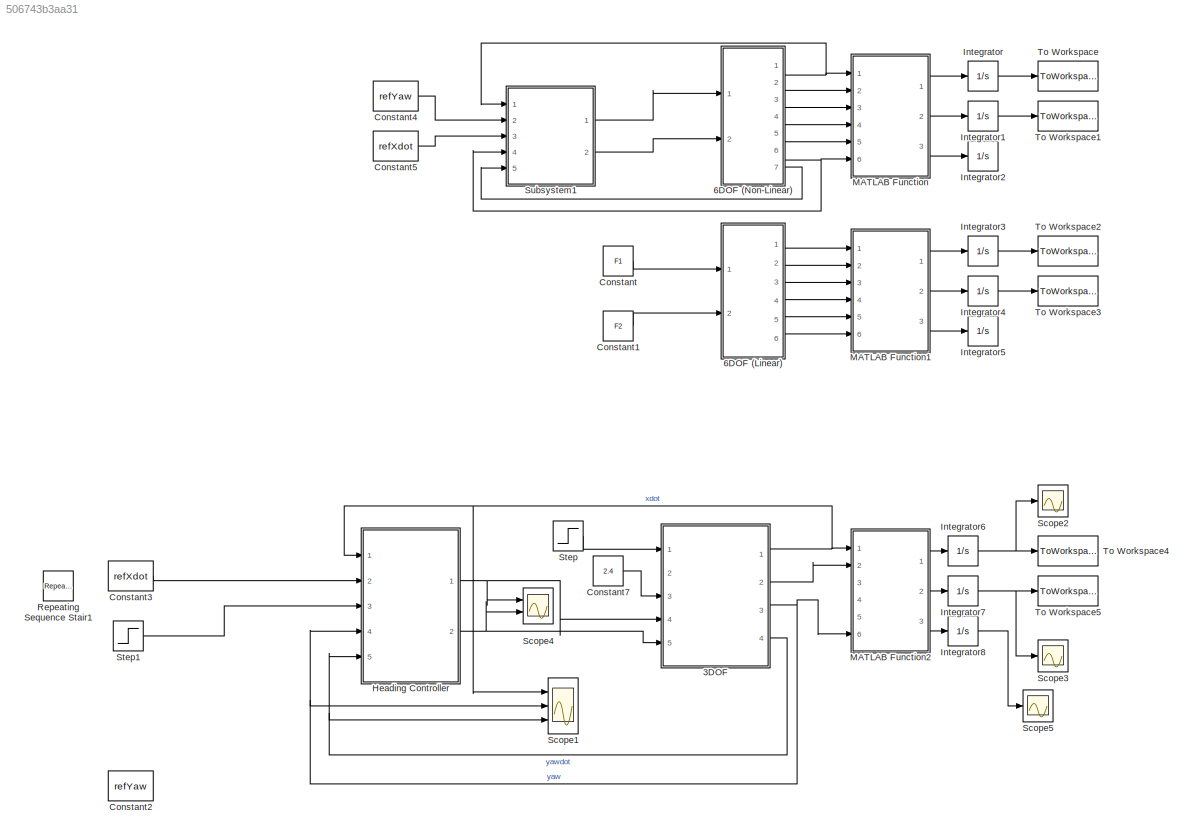
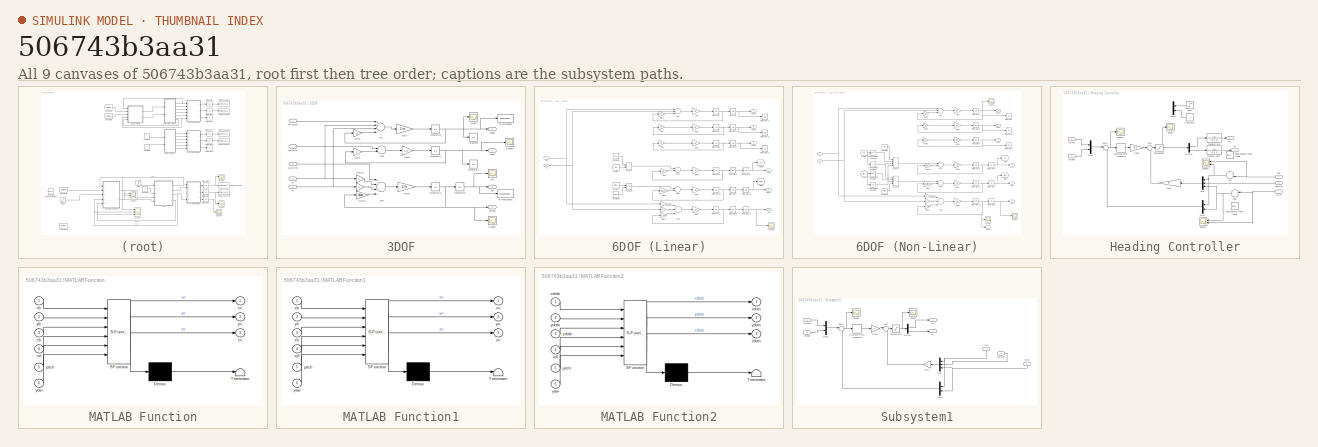
[diagram: thumbnail index - all 9 canvases of the model, root first then tree order]
MODEL slx_506743b3aa31
KIND model
CONFIG AbsTol = auto
CONFIG EnableMultiTasking = off
CONFIG FixedStep = 0.05
CONFIG MaxStep = auto
CONFIG MinStep = auto
CONFIG RelTol = 1e-3
CONFIG SampleTimeConstraint = Unconstrained
CONFIG Solver = FixedStepAuto
CONFIG SolverName = FixedStepAuto
CONFIG StartTime = 0.0
CONFIG StopTime = 50
WORKSPACE source: MAT-file member
WORKSPACE MCOS: class17 (value not decoded)
BLOCK [SubSystem] 3DOF
  Ports = [5, 4]
  RequestExecContextInheritance = off
  Variant = off
BLOCK [Sum] 3DOF/Add
  InputSameDT = off
  Inputs = +++-
  OutDataTypeStr = Inherit: Inherit via internal rule
  Ports = [4, 1]
  SaturateOnIntegerOverflow = off
BLOCK [Sum] 3DOF/Add1
  InputSameDT = off
  Inputs = +-
  OutDataTypeStr = Inherit: Inherit via internal rule
  Ports = [2, 1]
  SaturateOnIntegerOverflow = off
BLOCK [Sum] 3DOF/Add3
  InputSameDT = off
  Inputs = ++--
  OutDataTypeStr = Inherit: Inherit via internal rule
  Ports = [4, 1]
  SaturateOnIntegerOverflow = off
BLOCK [Inport] 3DOF/F1
  IconDisplay = Port number
  Port = 4
BLOCK [Inport] 3DOF/F2
  IconDisplay = Port number
  Port = 5
BLOCK [Inport] 3DOF/Fwind_xb
  IconDisplay = Port number
BLOCK [Inport] 3DOF/Fwind_yb
  IconDisplay = Port number
  Port = 2
BLOCK [Gain] 3DOF/Gain
  Gain = 1/m
  OutDataTypeStr = Inherit: Inherit via internal rule
  ParamDataTypeStr = Inherit: Inherit via internal rule
  SaturateOnIntegerOverflow = off
BLOCK [Gain] 3DOF/Gain1
  Gain = 1/m
  OutDataTypeStr = Inherit: Inherit via internal rule
  ParamDataTypeStr = Inherit: Inherit via internal rule
  SaturateOnIntegerOverflow = off
BLOCK [Gain] 3DOF/Gain11
  Gain = dyaw
  OutDataTypeStr = Inherit: Inherit via internal rule
  ParamDataTypeStr = Inherit: Inherit via internal rule
  SaturateOnIntegerOverflow = off
BLOCK [Gain] 3DOF/Gain12
  Gain = l1
  OutDataTypeStr = Inherit: Inherit via internal rule
  ParamDataTypeStr = Inherit: Inherit via internal rule
  SaturateOnIntegerOverflow = off
BLOCK [Gain] 3DOF/Gain13
  Gain = l2
  OutDataTypeStr = Inherit: Inherit via internal rule
  ParamDataTypeStr = Inherit: Inherit via internal rule
  SaturateOnIntegerOverflow = off
BLOCK [Gain] 3DOF/Gain3
  Gain = dx
  OutDataTypeStr = Inherit: Inherit via internal rule
  ParamDataTypeStr = Inherit: Inherit via internal rule
  SaturateOnIntegerOverflow = off
BLOCK [Gain] 3DOF/Gain4
  Gain = dy
  OutDataTypeStr = Inherit: Inherit via internal rule
  ParamDataTypeStr = Inherit: Inherit via internal rule
  SaturateOnIntegerOverflow = off
BLOCK [Gain] 3DOF/Gain8
  Gain = 1/Iz
  OutDataTypeStr = Inherit: Inherit via internal rule
  ParamDataTypeStr = Inherit: Inherit via internal rule
  SaturateOnIntegerOverflow = off
BLOCK [Integrator] 3DOF/Integrator
  Ports = [1, 1]
BLOCK [Integrator] 3DOF/Integrator1
  Ports = [1, 1]
BLOCK [Integrator] 3DOF/Integrator11
  Ports = [1, 1]
BLOCK [Integrator] 3DOF/Integrator3
  Ports = [1, 1]
BLOCK [Integrator] 3DOF/Integrator4
  Ports = [1, 1]
BLOCK [Integrator] 3DOF/Integrator8
  Ports = [1, 1]
BLOCK [Scope] 3DOF/Scope2
  NumInputPorts = 1
  Ports = [1]
  ScopeSpecificationString = Simulink.scopes.TimeScopeBlockCfg('CurrentConfiguration', extmgr.ConfigurationSet(extmgr.Configuration('Core','General UI',true),extmgr.Configuration('Core','Source UI',true),extmgr.Configuration('Sources','WiredSimulink',true,'DataLoggingVariableName','ScopeData3'),extmgr.Configuration('Visuals','Time Domain',true,'SerializedDisplays',{struct('MinYLimReal','-0.04365','MaxYLimReal','0.39287','YLab...<+1371ch>
BLOCK [Scope] 3DOF/Scope3
  NumInputPorts = 1
  Ports = [1]
  ScopeSpecificationString = Simulink.scopes.TimeScopeBlockCfg('CurrentConfiguration', extmgr.ConfigurationSet(extmgr.Configuration('Core','General UI',true),extmgr.Configuration('Core','Source UI',true),extmgr.Configuration('Sources','WiredSimulink',true,'DataLoggingVariableName','ScopeData1'),extmgr.Configuration('Visuals','Time Domain',true,'SerializedDisplays',{struct('MinYLimReal','-0.04371','MaxYLimReal','0.39336','YLab...<+1370ch>
BLOCK [ToWorkspace] 3DOF/To Workspace
  FixptAsFi = on
  MaxDataPoints = inf
  Ports = [1]
  SampleTime = Ts
  Save2DSignal = 3-D array (concatenate along third dimension)
  SaveFormat = Timeseries
  VariableName = xbdot
BLOCK [ToWorkspace] 3DOF/To Workspace1
  FixptAsFi = on
  MaxDataPoints = inf
  Ports = [1]
  SampleTime = Ts
  Save2DSignal = 3-D array (concatenate along third dimension)
  SaveFormat = Timeseries
  VariableName = yaw
BLOCK [Inport] 3DOF/tau_wind
  IconDisplay = Port number
  Port = 3
BLOCK [Scope] 3DOF/xb dot
  NumInputPorts = 1
  Ports = [1]
  ScopeSpecificationString = Simulink.scopes.TimeScopeBlockCfg('CurrentConfiguration', extmgr.ConfigurationSet(extmgr.Configuration('Core','General UI',true),extmgr.Configuration('Core','Source UI',true),extmgr.Configuration('Sources','WiredSimulink',true,'DataLoggingVariableName','ScopeData1'),extmgr.Configuration('Visuals','Time Domain',true,'SerializedDisplays',{struct('MinYLimReal','-0.1295','MaxYLimReal','1.16552','YLabe...<+1468ch>
BLOCK [Outport] 3DOF/xbdot
  IconDisplay = Port number
BLOCK [Outport] 3DOF/yaw
  IconDisplay = Port number
  Port = 3
BLOCK [Scope] 3DOF/yaw 
  NumInputPorts = 1
  Ports = [1]
  ScopeSpecificationString = Simulink.scopes.TimeScopeBlockCfg('CurrentConfiguration', extmgr.ConfigurationSet(extmgr.Configuration('Core','General UI',true),extmgr.Configuration('Core','Source UI',true),extmgr.Configuration('Sources','WiredSimulink',true,'DataLoggingVariableName','ScopeData2'),extmgr.Configuration('Visuals','Time Domain',true,'SerializedDisplays',{struct('MinYLimReal','-0.125','MaxYLimReal','1.125','YLabelRe...<+1459ch>
BLOCK [Outport] 3DOF/yawdot
  IconDisplay = Port number
  Port = 4
BLOCK [Outport] 3DOF/ybdot
  IconDisplay = Port number
  Port = 2
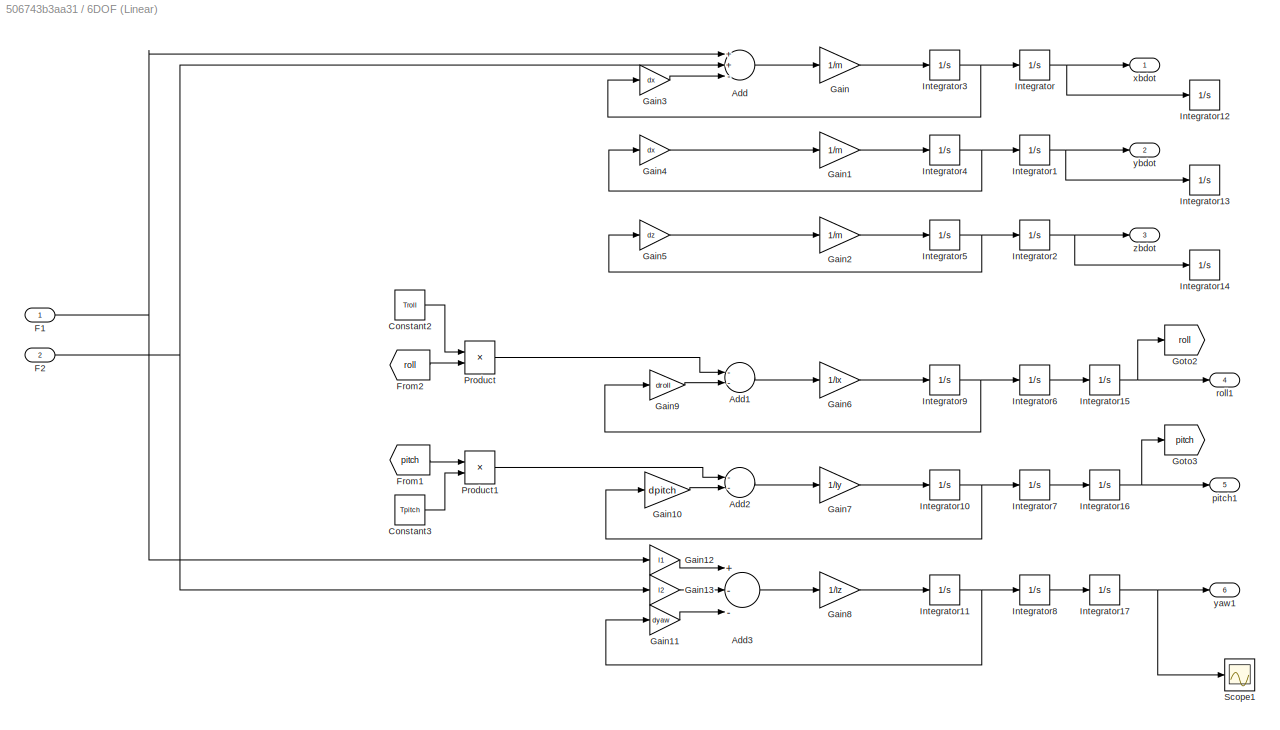
BLOCK [SubSystem] 6DOF (Linear)
  Commented = on
  Ports = [2, 6]
  RequestExecContextInheritance = off
  Variant = off
BLOCK [Sum] 6DOF (Linear)/Add
  InputSameDT = off
  Inputs = ++-
  OutDataTypeStr = Inherit: Inherit via internal rule
  Ports = [3, 1]
  SaturateOnIntegerOverflow = off
BLOCK [Sum] 6DOF (Linear)/Add1
  InputSameDT = off
  Inputs = --
  OutDataTypeStr = Inherit: Inherit via internal rule
  Ports = [2, 1]
  SaturateOnIntegerOverflow = off
BLOCK [Sum] 6DOF (Linear)/Add2
  InputSameDT = off
  Inputs = --
  OutDataTypeStr = Inherit: Inherit via internal rule
  Ports = [2, 1]
  SaturateOnIntegerOverflow = off
BLOCK [Sum] 6DOF (Linear)/Add3
  InputSameDT = off
  Inputs = +--
  OutDataTypeStr = Inherit: Inherit via internal rule
  Ports = [3, 1]
  SaturateOnIntegerOverflow = off
BLOCK [Constant] 6DOF (Linear)/Constant2
  Value = Troll
BLOCK [Constant] 6DOF (Linear)/Constant3
  Value = Tpitch
BLOCK [Inport] 6DOF (Linear)/F1
  IconDisplay = Port number
BLOCK [Inport] 6DOF (Linear)/F2
  IconDisplay = Port number
  Port = 2
BLOCK [From] 6DOF (Linear)/From1
  GotoTag = pitch
BLOCK [From] 6DOF (Linear)/From2
  GotoTag = roll
BLOCK [Gain] 6DOF (Linear)/Gain
  Gain = 1/m
  OutDataTypeStr = Inherit: Inherit via internal rule
  ParamDataTypeStr = Inherit: Inherit via internal rule
  SaturateOnIntegerOverflow = off
BLOCK [Gain] 6DOF (Linear)/Gain1
  Gain = 1/m
  OutDataTypeStr = Inherit: Inherit via internal rule
  ParamDataTypeStr = Inherit: Inherit via internal rule
  SaturateOnIntegerOverflow = off
BLOCK [Gain] 6DOF (Linear)/Gain10
  Gain = dpitch
  OutDataTypeStr = Inherit: Inherit via internal rule
  ParamDataTypeStr = Inherit: Inherit via internal rule
  SaturateOnIntegerOverflow = off
BLOCK [Gain] 6DOF (Linear)/Gain11
  Gain = dyaw
  OutDataTypeStr = Inherit: Inherit via internal rule
  ParamDataTypeStr = Inherit: Inherit via internal rule
  SaturateOnIntegerOverflow = off
BLOCK [Gain] 6DOF (Linear)/Gain12
  Gain = l1
  OutDataTypeStr = Inherit: Inherit via internal rule
  ParamDataTypeStr = Inherit: Inherit via internal rule
  SaturateOnIntegerOverflow = off
BLOCK [Gain] 6DOF (Linear)/Gain13
  Gain = l2
  OutDataTypeStr = Inherit: Inherit via internal rule
  ParamDataTypeStr = Inherit: Inherit via internal rule
  SaturateOnIntegerOverflow = off
BLOCK [Gain] 6DOF (Linear)/Gain2
  Gain = 1/m
  OutDataTypeStr = Inherit: Inherit via internal rule
  ParamDataTypeStr = Inherit: Inherit via internal rule
  SaturateOnIntegerOverflow = off
BLOCK [Gain] 6DOF (Linear)/Gain3
  Gain = dx
  OutDataTypeStr = Inherit: Inherit via internal rule
  ParamDataTypeStr = Inherit: Inherit via internal rule
  SaturateOnIntegerOverflow = off
BLOCK [Gain] 6DOF (Linear)/Gain4
  Gain = dx
  OutDataTypeStr = Inherit: Inherit via internal rule
  ParamDataTypeStr = Inherit: Inherit via internal rule
  SaturateOnIntegerOverflow = off
BLOCK [Gain] 6DOF (Linear)/Gain5
  Gain = dz
  OutDataTypeStr = Inherit: Inherit via internal rule
  ParamDataTypeStr = Inherit: Inherit via internal rule
  SaturateOnIntegerOverflow = off
BLOCK [Gain] 6DOF (Linear)/Gain6
  Gain = 1/Ix
  OutDataTypeStr = Inherit: Inherit via internal rule
  ParamDataTypeStr = Inherit: Inherit via internal rule
  SaturateOnIntegerOverflow = off
BLOCK [Gain] 6DOF (Linear)/Gain7
  Gain = 1/Iy
  OutDataTypeStr = Inherit: Inherit via internal rule
  ParamDataTypeStr = Inherit: Inherit via internal rule
  SaturateOnIntegerOverflow = off
BLOCK [Gain] 6DOF (Linear)/Gain8
  Gain = 1/Iz
  OutDataTypeStr = Inherit: Inherit via internal rule
  ParamDataTypeStr = Inherit: Inherit via internal rule
  SaturateOnIntegerOverflow = off
BLOCK [Gain] 6DOF (Linear)/Gain9
  Gain = droll
  OutDataTypeStr = Inherit: Inherit via internal rule
  ParamDataTypeStr = Inherit: Inherit via internal rule
  SaturateOnIntegerOverflow = off
BLOCK [Goto] 6DOF (Linear)/Goto2
  GotoTag = roll
BLOCK [Goto] 6DOF (Linear)/Goto3
  GotoTag = pitch
BLOCK [Integrator] 6DOF (Linear)/Integrator
  Ports = [1, 1]
BLOCK [Integrator] 6DOF (Linear)/Integrator1
  Ports = [1, 1]
BLOCK [Integrator] 6DOF (Linear)/Integrator10
  Ports = [1, 1]
BLOCK [Integrator] 6DOF (Linear)/Integrator11
  Ports = [1, 1]
BLOCK [Integrator] 6DOF (Linear)/Integrator12
  Ports = [1, 1]
BLOCK [Integrator] 6DOF (Linear)/Integrator13
  Ports = [1, 1]
BLOCK [Integrator] 6DOF (Linear)/Integrator14
  Ports = [1, 1]
BLOCK [Integrator] 6DOF (Linear)/Integrator15
  Ports = [1, 1]
BLOCK [Integrator] 6DOF (Linear)/Integrator16
  Ports = [1, 1]
BLOCK [Integrator] 6DOF (Linear)/Integrator17
  Ports = [1, 1]
BLOCK [Integrator] 6DOF (Linear)/Integrator2
  Ports = [1, 1]
BLOCK [Integrator] 6DOF (Linear)/Integrator3
  Ports = [1, 1]
BLOCK [Integrator] 6DOF (Linear)/Integrator4
  Ports = [1, 1]
BLOCK [Integrator] 6DOF (Linear)/Integrator5
  Ports = [1, 1]
BLOCK [Integrator] 6DOF (Linear)/Integrator6
  Ports = [1, 1]
BLOCK [Integrator] 6DOF (Linear)/Integrator7
  Ports = [1, 1]
BLOCK [Integrator] 6DOF (Linear)/Integrator8
  Ports = [1, 1]
BLOCK [Integrator] 6DOF (Linear)/Integrator9
  Ports = [1, 1]
BLOCK [Product] 6DOF (Linear)/Product
  InputSameDT = off
  OutDataTypeStr = Inherit: Inherit via internal rule
  Ports = [2, 1]
  RndMeth = Floor
  SaturateOnIntegerOverflow = off
BLOCK [Product] 6DOF (Linear)/Product1
  InputSameDT = off
  OutDataTypeStr = Inherit: Inherit via internal rule
  Ports = [2, 1]
  RndMeth = Floor
  SaturateOnIntegerOverflow = off
BLOCK [Scope] 6DOF (Linear)/Scope1
  NumInputPorts = 1
  Ports = [1]
  ScopeSpecificationString = C++SS(StrPVP('SaveName','ScopeData2'),StrPVP('LimitDataPoints','on'),StrPVP('DataFormat','Array'),StrPVP('Decimation','1'),StrPVP('BlockParamSampleInput','off'))
BLOCK [Outport] 6DOF (Linear)/pitch1
  IconDisplay = Port number
  Port = 5
BLOCK [Outport] 6DOF (Linear)/roll1
  IconDisplay = Port number
  Port = 4
BLOCK [Outport] 6DOF (Linear)/xbdot
  IconDisplay = Port number
BLOCK [Outport] 6DOF (Linear)/yaw1
  IconDisplay = Port number
  Port = 6
BLOCK [Outport] 6DOF (Linear)/ybdot
  IconDisplay = Port number
  Port = 2
BLOCK [Outport] 6DOF (Linear)/zbdot
  IconDisplay = Port number
  Port = 3
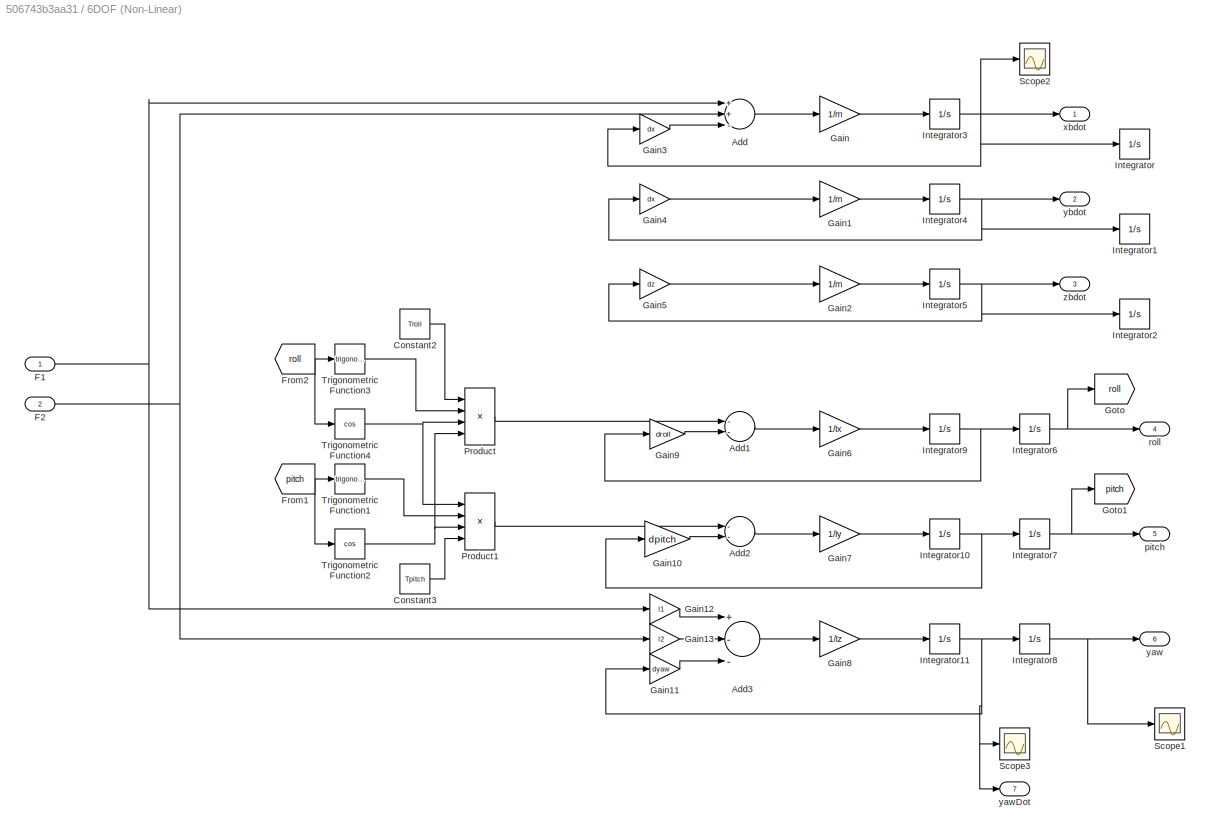
BLOCK [SubSystem] 6DOF (Non-Linear)
  Commented = on
  Ports = [2, 7]
  RequestExecContextInheritance = off
  Variant = off
BLOCK [Sum] 6DOF (Non-Linear)/Add
  InputSameDT = off
  Inputs = ++-
  OutDataTypeStr = Inherit: Inherit via internal rule
  Ports = [3, 1]
  SaturateOnIntegerOverflow = off
BLOCK [Sum] 6DOF (Non-Linear)/Add1
  InputSameDT = off
  Inputs = --
  OutDataTypeStr = Inherit: Inherit via internal rule
  Ports = [2, 1]
  SaturateOnIntegerOverflow = off
BLOCK [Sum] 6DOF (Non-Linear)/Add2
  InputSameDT = off
  Inputs = --
  OutDataTypeStr = Inherit: Inherit via internal rule
  Ports = [2, 1]
  SaturateOnIntegerOverflow = off
BLOCK [Sum] 6DOF (Non-Linear)/Add3
  InputSameDT = off
  Inputs = +--
  OutDataTypeStr = Inherit: Inherit via internal rule
  Ports = [3, 1]
  SaturateOnIntegerOverflow = off
BLOCK [Constant] 6DOF (Non-Linear)/Constant2
  Value = Troll
BLOCK [Constant] 6DOF (Non-Linear)/Constant3
  Value = Tpitch
BLOCK [Inport] 6DOF (Non-Linear)/F1
  IconDisplay = Port number
BLOCK [Inport] 6DOF (Non-Linear)/F2
  IconDisplay = Port number
  Port = 2
BLOCK [From] 6DOF (Non-Linear)/From1
  GotoTag = pitch
BLOCK [From] 6DOF (Non-Linear)/From2
  GotoTag = roll
BLOCK [Gain] 6DOF (Non-Linear)/Gain
  Gain = 1/m
  OutDataTypeStr = Inherit: Inherit via internal rule
  ParamDataTypeStr = Inherit: Inherit via internal rule
  SaturateOnIntegerOverflow = off
BLOCK [Gain] 6DOF (Non-Linear)/Gain1
  Gain = 1/m
  OutDataTypeStr = Inherit: Inherit via internal rule
  ParamDataTypeStr = Inherit: Inherit via internal rule
  SaturateOnIntegerOverflow = off
BLOCK [Gain] 6DOF (Non-Linear)/Gain10
  Gain = dpitch
  OutDataTypeStr = Inherit: Inherit via internal rule
  ParamDataTypeStr = Inherit: Inherit via internal rule
  SaturateOnIntegerOverflow = off
BLOCK [Gain] 6DOF (Non-Linear)/Gain11
  Gain = dyaw
  OutDataTypeStr = Inherit: Inherit via internal rule
  ParamDataTypeStr = Inherit: Inherit via internal rule
  SaturateOnIntegerOverflow = off
BLOCK [Gain] 6DOF (Non-Linear)/Gain12
  Gain = l1
  OutDataTypeStr = Inherit: Inherit via internal rule
  ParamDataTypeStr = Inherit: Inherit via internal rule
  SaturateOnIntegerOverflow = off
BLOCK [Gain] 6DOF (Non-Linear)/Gain13
  Gain = l2
  OutDataTypeStr = Inherit: Inherit via internal rule
  ParamDataTypeStr = Inherit: Inherit via internal rule
  SaturateOnIntegerOverflow = off
BLOCK [Gain] 6DOF (Non-Linear)/Gain2
  Gain = 1/m
  OutDataTypeStr = Inherit: Inherit via internal rule
  ParamDataTypeStr = Inherit: Inherit via internal rule
  SaturateOnIntegerOverflow = off
BLOCK [Gain] 6DOF (Non-Linear)/Gain3
  Gain = dx
  OutDataTypeStr = Inherit: Inherit via internal rule
  ParamDataTypeStr = Inherit: Inherit via internal rule
  SaturateOnIntegerOverflow = off
BLOCK [Gain] 6DOF (Non-Linear)/Gain4
  Gain = dx
  OutDataTypeStr = Inherit: Inherit via internal rule
  ParamDataTypeStr = Inherit: Inherit via internal rule
  SaturateOnIntegerOverflow = off
BLOCK [Gain] 6DOF (Non-Linear)/Gain5
  Gain = dz
  OutDataTypeStr = Inherit: Inherit via internal rule
  ParamDataTypeStr = Inherit: Inherit via internal rule
  SaturateOnIntegerOverflow = off
BLOCK [Gain] 6DOF (Non-Linear)/Gain6
  Gain = 1/Ix
  OutDataTypeStr = Inherit: Inherit via internal rule
  ParamDataTypeStr = Inherit: Inherit via internal rule
  SaturateOnIntegerOverflow = off
BLOCK [Gain] 6DOF (Non-Linear)/Gain7
  Gain = 1/Iy
  OutDataTypeStr = Inherit: Inherit via internal rule
  ParamDataTypeStr = Inherit: Inherit via internal rule
  SaturateOnIntegerOverflow = off
BLOCK [Gain] 6DOF (Non-Linear)/Gain8
  Gain = 1/Iz
  OutDataTypeStr = Inherit: Inherit via internal rule
  ParamDataTypeStr = Inherit: Inherit via internal rule
  SaturateOnIntegerOverflow = off
BLOCK [Gain] 6DOF (Non-Linear)/Gain9
  Gain = droll
  OutDataTypeStr = Inherit: Inherit via internal rule
  ParamDataTypeStr = Inherit: Inherit via internal rule
  SaturateOnIntegerOverflow = off
BLOCK [Goto] 6DOF (Non-Linear)/Goto
  GotoTag = roll
BLOCK [Goto] 6DOF (Non-Linear)/Goto1
  GotoTag = pitch
BLOCK [Integrator] 6DOF (Non-Linear)/Integrator
  Ports = [1, 1]
BLOCK [Integrator] 6DOF (Non-Linear)/Integrator1
  Ports = [1, 1]
BLOCK [Integrator] 6DOF (Non-Linear)/Integrator10
  Ports = [1, 1]
BLOCK [Integrator] 6DOF (Non-Linear)/Integrator11
  Ports = [1, 1]
BLOCK [Integrator] 6DOF (Non-Linear)/Integrator2
  Ports = [1, 1]
BLOCK [Integrator] 6DOF (Non-Linear)/Integrator3
  Ports = [1, 1]
BLOCK [Integrator] 6DOF (Non-Linear)/Integrator4
  Ports = [1, 1]
BLOCK [Integrator] 6DOF (Non-Linear)/Integrator5
  Ports = [1, 1]
BLOCK [Integrator] 6DOF (Non-Linear)/Integrator6
  Ports = [1, 1]
BLOCK [Integrator] 6DOF (Non-Linear)/Integrator7
  Ports = [1, 1]
BLOCK [Integrator] 6DOF (Non-Linear)/Integrator8
  Ports = [1, 1]
BLOCK [Integrator] 6DOF (Non-Linear)/Integrator9
  Ports = [1, 1]
BLOCK [Product] 6DOF (Non-Linear)/Product
  InputSameDT = off
  Inputs = 4
  OutDataTypeStr = Inherit: Inherit via internal rule
  Ports = [4, 1]
  RndMeth = Floor
  SaturateOnIntegerOverflow = off
BLOCK [Product] 6DOF (Non-Linear)/Product1
  InputSameDT = off
  Inputs = 4
  OutDataTypeStr = Inherit: Inherit via internal rule
  Ports = [4, 1]
  RndMeth = Floor
  SaturateOnIntegerOverflow = off
BLOCK [Scope] 6DOF (Non-Linear)/Scope1
  NumInputPorts = 1
  Ports = [1]
  ScopeSpecificationString = Simulink.scopes.TimeScopeBlockCfg('CurrentConfiguration', extmgr.ConfigurationSet(extmgr.Configuration('Core','General UI',true),extmgr.Configuration('Core','Source UI',true),extmgr.Configuration('Sources','WiredSimulink',true,'DataLoggingVariableName','ScopeData3'),extmgr.Configuration('Visuals','Time Domain',true,'SerializedDisplays',{struct('MinYLimReal','-0.13055','MaxYLimReal','1.17499','YLab...<+1370ch>
BLOCK [Scope] 6DOF (Non-Linear)/Scope2
  NumInputPorts = 1
  Ports = [1]
  ScopeSpecificationString = Simulink.scopes.TimeScopeBlockCfg('CurrentConfiguration', extmgr.ConfigurationSet(extmgr.Configuration('Core','General UI',true),extmgr.Configuration('Core','Source UI',true),extmgr.Configuration('Sources','WiredSimulink',true),extmgr.Configuration('Visuals','Time Domain',true,'SerializedDisplays',{struct('MinYLimReal','-0.125','MaxYLimReal','1.12496','YLabelReal','','MinYLimMag','0.00000','MaxYLi...<+1356ch>
BLOCK [Scope] 6DOF (Non-Linear)/Scope3
  NumInputPorts = 1
  Ports = [1]
  ScopeSpecificationString = Simulink.scopes.TimeScopeBlockCfg('CurrentConfiguration', extmgr.ConfigurationSet(extmgr.Configuration('Core','General UI',true),extmgr.Configuration('Core','Source UI',true),extmgr.Configuration('Sources','WiredSimulink',true,'DataLoggingVariableName','ScopeData1'),extmgr.Configuration('Visuals','Time Domain',true,'SerializedDisplays',{struct('MinYLimReal','-0.04063','MaxYLimReal','0.36567','YLab...<+1400ch>
BLOCK [Trigonometry] 6DOF (Non-Linear)/Trigonometric Function1
  Ports = [1, 1]
BLOCK [Trigonometry] 6DOF (Non-Linear)/Trigonometric Function2
  Operator = cos
  Ports = [1, 1]
BLOCK [Trigonometry] 6DOF (Non-Linear)/Trigonometric Function3
  Ports = [1, 1]
BLOCK [Trigonometry] 6DOF (Non-Linear)/Trigonometric Function4
  Operator = cos
  Ports = [1, 1]
BLOCK [Outport] 6DOF (Non-Linear)/pitch
  IconDisplay = Port number
  Port = 5
BLOCK [Outport] 6DOF (Non-Linear)/roll
  IconDisplay = Port number
  Port = 4
BLOCK [Outport] 6DOF (Non-Linear)/xbdot
  IconDisplay = Port number
BLOCK [Outport] 6DOF (Non-Linear)/yaw
  IconDisplay = Port number
  Port = 6
BLOCK [Outport] 6DOF (Non-Linear)/yawDot
  IconDisplay = Port number
  Port = 7
BLOCK [Outport] 6DOF (Non-Linear)/ybdot
  IconDisplay = Port number
  Port = 2
BLOCK [Outport] 6DOF (Non-Linear)/zbdot
  IconDisplay = Port number
  Port = 3
BLOCK [Constant] Constant
  Commented = on
  Value = F1
BLOCK [Constant] Constant1
  Commented = on
  Value = F2
BLOCK [Constant] Constant2
  Value = refYaw
BLOCK [Constant] Constant3
  Value = refXdot
BLOCK [Constant] Constant4
  Commented = on
  Value = refYaw
BLOCK [Constant] Constant5
  Commented = on
  Value = refXdot
BLOCK [Constant] Constant7
  Value = 2.4
BLOCK [SubSystem] Heading Controller
  Ports = [5, 2]
  RequestExecContextInheritance = off
  Variant = off
BLOCK [Sum] Heading Controller/Add
  InputSameDT = off
  OutDataTypeStr = Inherit: Inherit via internal rule
  Ports = [2, 1]
  SaturateOnIntegerOverflow = off
BLOCK [Sum] Heading Controller/Add1
  InputSameDT = off
  OutDataTypeStr = Inherit: Inherit via internal rule
  Ports = [2, 1]
  SaturateOnIntegerOverflow = off
BLOCK [Reference] Heading Controller/Band-Limited White Noise  REF=simulink/Sources/Band-Limited
White Noise
  Ports = [0, 1]
  SourceBlock = simulink/Sources/Band-Limited\nWhite Noise
  SourceType = Band-Limited White Noise.
BLOCK [Reference] Heading Controller/Band-Limited White Noise1  REF=simulink/Sources/Band-Limited
White Noise
  Ports = [0, 1]
  SourceBlock = simulink/Sources/Band-Limited\nWhite Noise
  SourceType = Band-Limited White Noise.
BLOCK [Constant] Heading Controller/Constant7
BLOCK [Demux] Heading Controller/Demux
  DisplayOption = bar
  Outputs = 2
  Ports = [1, 2]
BLOCK [DiscreteIntegrator] Heading Controller/Discrete-Time Integrator
  ICPrevOutput = DiscIntNeverNeededParam
  ICPrevScaledInput = DiscIntNeverNeededParam
  InitialConditionSetting = State (most efficient)
  Ports = [1, 1]
  SampleTime = -1
BLOCK [Outport] Heading Controller/F1
  IconDisplay = Port number
BLOCK [Outport] Heading Controller/F2
  IconDisplay = Port number
  Port = 2
BLOCK [Gain] Heading Controller/Gain
  Gain = F
  Multiplication = Matrix(K*u)
  OutDataTypeStr = Inherit: Inherit via internal rule
  ParamDataTypeStr = Inherit: Inherit via internal rule
  SaturateOnIntegerOverflow = off
BLOCK [Gain] Heading Controller/Gain1
  Gain = FI
  Multiplication = Matrix(K*u)
  OutDataTypeStr = Inherit: Inherit via internal rule
  ParamDataTypeStr = Inherit: Inherit via internal rule
  SaturateOnIntegerOverflow = off
BLOCK [Mux] Heading Controller/Mux
  DisplayOption = bar
  Inputs = 3
  Ports = [3, 1]
BLOCK [Mux] Heading Controller/Mux1
  DisplayOption = bar
  Inputs = 2
  Ports = [2, 1]
BLOCK [Mux] Heading Controller/Mux2
  DisplayOption = bar
  Inputs = 2
  Ports = [2, 1]
BLOCK [Mux] Heading Controller/Mux3
  DisplayOption = bar
  Inputs = 2
  Ports = [2, 1]
BLOCK [Saturate] Heading Controller/Saturation1
  InputPortMap = u0
  LowerLimit = -25
  Ports = [1, 1]
  UpperLimit = 50
BLOCK [Scope] Heading Controller/Scope
  NumInputPorts = 1
  Ports = [1]
  ScopeSpecificationString = Simulink.scopes.TimeScopeBlockCfg('CurrentConfiguration', extmgr.ConfigurationSet(extmgr.Configuration('Core','General UI',true),extmgr.Configuration('Core','Source UI',true),extmgr.Configuration('Sources','WiredSimulink',true,'DataLoggingVariableName','ScopeData4'),extmgr.Configuration('Visuals','Time Domain',true,'SerializedDisplays',{struct('MinYLimReal','-34.375','MaxYLimReal','59.375','YLabel...<+1453ch>
BLOCK [Scope] Heading Controller/Scope1
  NumInputPorts = 1
  Ports = [1]
  ScopeSpecificationString = Simulink.scopes.TimeScopeBlockCfg('CurrentConfiguration', extmgr.ConfigurationSet(extmgr.Configuration('Core','General UI',true),extmgr.Configuration('Core','Source UI',true),extmgr.Configuration('Sources','WiredSimulink',true,'DataLoggingVariableName','ScopeData5'),extmgr.Configuration('Visuals','Time Domain',true,'SerializedDisplays',{struct('MinYLimReal','-0.1309','MaxYLimReal','1.1781','YLabel...<+1441ch>
BLOCK [Scope] Heading Controller/Scope2
  NumInputPorts = 2
  Ports = [2]
  ScopeSpecificationString = Simulink.scopes.TimeScopeBlockCfg('CurrentConfiguration', extmgr.ConfigurationSet(extmgr.Configuration('Core','General UI',true),extmgr.Configuration('Core','Source UI',true),extmgr.Configuration('Sources','WiredSimulink',true,'DataLoggingVariableName','ScopeData1'),extmgr.Configuration('Visuals','Time Domain',true,'SerializedDisplays',{struct('MinYLimReal','-0.1274','MaxYLimReal','1.14661','YLabe...<+1395ch>
BLOCK [Scope] Heading Controller/Scope3
  NumInputPorts = 2
  Ports = [2]
  ScopeSpecificationString = Simulink.scopes.TimeScopeBlockCfg('CurrentConfiguration', extmgr.ConfigurationSet(extmgr.Configuration('Core','General UI',true),extmgr.Configuration('Core','Source UI',true),extmgr.Configuration('Sources','WiredSimulink',true,'DataLoggingVariableName','ScopeData2'),extmgr.Configuration('Visuals','Time Domain',true,'SerializedDisplays',{struct('MinYLimReal','-0.12507','MaxYLimReal','1.12507','YLab...<+1439ch>
BLOCK [Step] Heading Controller/Step
  After = 50
  SampleTime = 0
  Time = 3
BLOCK [Sum] Heading Controller/Sum
  IconShape = round
  InputSameDT = off
  Inputs = ---
  OutDataTypeStr = Inherit: Inherit via internal rule
  Ports = [3, 1]
  SaturateOnIntegerOverflow = off
BLOCK [Sum] Heading Controller/Sum1
  IconShape = round
  InputSameDT = off
  Inputs = |+-
  OutDataTypeStr = Inherit: Inherit via internal rule
  Ports = [2, 1]
  SaturateOnIntegerOverflow = off
BLOCK [TransferFcn] Heading Controller/Transfer Fcn
  Denominator = [0.1 1]
BLOCK [TransferFcn] Heading Controller/Transfer Fcn1
  Denominator = [0.1 1]
BLOCK [Inport] Heading Controller/refXdot
  IconDisplay = Port number
  Port = 2
  PortDimensions = 1
BLOCK [Inport] Heading Controller/refYaw
  IconDisplay = Port number
  Port = 3
  PortDimensions = 1
BLOCK [Inport] Heading Controller/xDot
  IconDisplay = Port number
BLOCK [Inport] Heading Controller/yaw
  IconDisplay = Port number
  Port = 4
BLOCK [Inport] Heading Controller/yawDot
  IconDisplay = Port number
  Port = 5
BLOCK [Integrator] Integrator
  Commented = on
  Ports = [1, 1]
BLOCK [Integrator] Integrator1
  Commented = on
  Ports = [1, 1]
BLOCK [Integrator] Integrator2
  Commented = on
  Ports = [1, 1]
BLOCK [Integrator] Integrator3
  Commented = on
  Ports = [1, 1]
BLOCK [Integrator] Integrator4
  Commented = on
  Ports = [1, 1]
BLOCK [Integrator] Integrator5
  Commented = on
  Ports = [1, 1]
BLOCK [Integrator] Integrator6
  Ports = [1, 1]
BLOCK [Integrator] Integrator7
  Ports = [1, 1]
BLOCK [Integrator] Integrator8
  Ports = [1, 1]
BLOCK [SubSystem] MATLAB Function
  Commented = on
  ErrorFcn = Stateflow.Translate.translate
  PermitHierarchicalResolution = ExplicitOnly
  Ports = [6, 3]
  RequestExecContextInheritance = off
  SFBlockType = MATLAB Function
  TreatAsAtomicUnit = on
  Variant = off
BLOCK [Demux] MATLAB Function/ Demux 
  Outputs = 1
  Ports = [1, 1]
BLOCK [S-Function] MATLAB Function/ SFunction 
  EnableBusSupport = on
  FunctionName = sf_sfun
  PortCounts = [6 4]
  Ports = [6, 4]
  SFcnIsStateOwnerBlock = off
  SFunctionDeploymentMode = off
  Tag = Stateflow S-Function InnerController 2
BLOCK [Terminator] MATLAB Function/ Terminator 
BLOCK [Inport] MATLAB Function/pitch
  IconDisplay = Port number
  Port = 5
BLOCK [Inport] MATLAB Function/roll
  IconDisplay = Port number
  Port = 4
BLOCK [Inport] MATLAB Function/xb
  IconDisplay = Port number
BLOCK [Outport] MATLAB Function/xn
  IconDisplay = Port number
BLOCK [Inport] MATLAB Function/yaw
  IconDisplay = Port number
  Port = 6
BLOCK [Inport] MATLAB Function/yb
  IconDisplay = Port number
  Port = 2
BLOCK [Outport] MATLAB Function/yn
  IconDisplay = Port number
  Port = 2
BLOCK [Inport] MATLAB Function/zb
  IconDisplay = Port number
  Port = 3
BLOCK [Outport] MATLAB Function/zn
  IconDisplay = Port number
  Port = 3
BLOCK [SubSystem] MATLAB Function1
  Commented = on
  ErrorFcn = Stateflow.Translate.translate
  PermitHierarchicalResolution = ExplicitOnly
  Ports = [6, 3]
  RequestExecContextInheritance = off
  SFBlockType = MATLAB Function
  TreatAsAtomicUnit = on
  Variant = off
BLOCK [Demux] MATLAB Function1/ Demux 
  Outputs = 1
  Ports = [1, 1]
BLOCK [S-Function] MATLAB Function1/ SFunction 
  EnableBusSupport = on
  FunctionName = sf_sfun
  PortCounts = [6 4]
  Ports = [6, 4]
  SFcnIsStateOwnerBlock = off
  SFunctionDeploymentMode = off
  Tag = Stateflow S-Function InnerController 1
BLOCK [Terminator] MATLAB Function1/ Terminator 
BLOCK [Inport] MATLAB Function1/pitch
  IconDisplay = Port number
  Port = 5
BLOCK [Inport] MATLAB Function1/roll
  IconDisplay = Port number
  Port = 4
BLOCK [Inport] MATLAB Function1/xb
  IconDisplay = Port number
BLOCK [Outport] MATLAB Function1/xn
  IconDisplay = Port number
BLOCK [Inport] MATLAB Function1/yaw
  IconDisplay = Port number
  Port = 6
BLOCK [Inport] MATLAB Function1/yb
  IconDisplay = Port number
  Port = 2
BLOCK [Outport] MATLAB Function1/yn
  IconDisplay = Port number
  Port = 2
BLOCK [Inport] MATLAB Function1/zb
  IconDisplay = Port number
  Port = 3
BLOCK [Outport] MATLAB Function1/zn
  IconDisplay = Port number
  Port = 3
BLOCK [SubSystem] MATLAB Function2
  ErrorFcn = Stateflow.Translate.translate
  PermitHierarchicalResolution = ExplicitOnly
  Ports = [6, 3]
  RequestExecContextInheritance = off
  SFBlockType = MATLAB Function
  TreatAsAtomicUnit = on
  Variant = off
BLOCK [Demux] MATLAB Function2/ Demux 
  Outputs = 1
  Ports = [1, 1]
BLOCK [S-Function] MATLAB Function2/ SFunction 
  EnableBusSupport = on
  FunctionName = sf_sfun
  PortCounts = [6 4]
  Ports = [6, 4]
  SFcnIsStateOwnerBlock = off
  SFunctionDeploymentMode = off
  Tag = Stateflow S-Function InnerController 3
BLOCK [Terminator] MATLAB Function2/ Terminator 
BLOCK [Inport] MATLAB Function2/pitch
  IconDisplay = Port number
  Port = 5
BLOCK [Inport] MATLAB Function2/roll
  IconDisplay = Port number
  Port = 4
BLOCK [Inport] MATLAB Function2/xdotb
  IconDisplay = Port number
BLOCK [Outport] MATLAB Function2/xdotn
  IconDisplay = Port number
BLOCK [Inport] MATLAB Function2/yaw
  IconDisplay = Port number
  Port = 6
BLOCK [Inport] MATLAB Function2/ydotb
  IconDisplay = Port number
  Port = 2
BLOCK [Outport] MATLAB Function2/ydotn
  IconDisplay = Port number
  Port = 2
BLOCK [Inport] MATLAB Function2/zdotb
  IconDisplay = Port number
  Port = 3
BLOCK [Outport] MATLAB Function2/zdotn
  IconDisplay = Port number
  Port = 3
BLOCK [Reference] Repeating Sequence Stair1  REF=simulink/Sources/Repeating
Sequence
Stair
  Ports = [0, 1]
  SourceBlock = simulink/Sources/Repeating\nSequence\nStair
  SourceType = Repeating Sequence Stair
BLOCK [Scope] Scope1
  NumInputPorts = 3
  Ports = [3]
  ScopeSpecificationString = Simulink.scopes.TimeScopeBlockCfg('CurrentConfiguration', extmgr.ConfigurationSet(extmgr.Configuration('Core','General UI',true),extmgr.Configuration('Core','Source UI',true),extmgr.Configuration('Sources','WiredSimulink',true,'DataLoggingVariableName','ScopeData1'),extmgr.Configuration('Visuals','Time Domain',true,'SerializedDisplays',{struct('MinYLimReal','-0.13061','MaxYLimReal','1.1755','YLabe...<+1447ch>
BLOCK [Scope] Scope2
  NumInputPorts = 1
  Ports = [1]
  ScopeSpecificationString = Simulink.scopes.TimeScopeBlockCfg('CurrentConfiguration', extmgr.ConfigurationSet(extmgr.Configuration('Core','General UI',true),extmgr.Configuration('Core','Source UI',true),extmgr.Configuration('Sources','WiredSimulink',true,'DataLoggingVariableName','ScopeData6'),extmgr.Configuration('Visuals','Time Domain',true,'SerializedDisplays',{struct('MinYLimReal','-1.38458','MaxYLimReal','12.46118','YLa...<+1472ch>
BLOCK [Scope] Scope3
  NumInputPorts = 1
  Ports = [1]
  ScopeSpecificationString = Simulink.scopes.TimeScopeBlockCfg('CurrentConfiguration', extmgr.ConfigurationSet(extmgr.Configuration('Core','General UI',true),extmgr.Configuration('Core','Source UI',true),extmgr.Configuration('Sources','WiredSimulink',true,'DataLoggingVariableName','ScopeData7'),extmgr.Configuration('Visuals','Time Domain',true,'SerializedDisplays',{struct('MinYLimReal','-18.44979','MaxYLimReal','166.04811','Y...<+1479ch>
BLOCK [Scope] Scope4
  NumInputPorts = 2
  Ports = [2]
  ScopeSpecificationString = Simulink.scopes.TimeScopeBlockCfg('CurrentConfiguration', extmgr.ConfigurationSet(extmgr.Configuration('Core','General UI',true),extmgr.Configuration('Core','Source UI',true),extmgr.Configuration('Sources','WiredSimulink',true,'DataLoggingVariableName','ScopeData2'),extmgr.Configuration('Visuals','Time Domain',true,'SerializedDisplays',{struct('MinYLimReal','-34.375','MaxYLimReal','59.375','YLabel...<+1467ch>
BLOCK [Scope] Scope5
  NumInputPorts = 1
  Ports = [1]
  ScopeSpecificationString = C++SS(StrPVP('SaveName','ScopeData1'),StrPVP('LimitDataPoints','on'),StrPVP('DataFormat','Array'),StrPVP('Decimation','1'),StrPVP('BlockParamSampleInput','off'))
BLOCK [Step] Step
  After = 4
  SampleTime = 0
  Time = 10
BLOCK [Step] Step1
  SampleTime = 0
  Time = 10
BLOCK [SubSystem] Subsystem1
  Commented = on
  Ports = [5, 2]
  RequestExecContextInheritance = off
  Variant = off
BLOCK [Demux] Subsystem1/Demux
  DisplayOption = bar
  Outputs = 2
  Ports = [1, 2]
BLOCK [DiscreteIntegrator] Subsystem1/Discrete-Time Integrator
  ICPrevOutput = DiscIntNeverNeededParam
  ICPrevScaledInput = DiscIntNeverNeededParam
  InitialConditionSetting = State (most efficient)
  Ports = [1, 1]
  SampleTime = -1
BLOCK [Outport] Subsystem1/F1
  IconDisplay = Port number
BLOCK [Outport] Subsystem1/F2
  IconDisplay = Port number
  Port = 2
BLOCK [Gain] Subsystem1/Gain
  Gain = F
  Multiplication = Matrix(K*u)
  OutDataTypeStr = Inherit: Inherit via internal rule
  ParamDataTypeStr = Inherit: Inherit via internal rule
  SaturateOnIntegerOverflow = off
BLOCK [Gain] Subsystem1/Gain1
  Gain = Fi
  Multiplication = Matrix(K*u)
  OutDataTypeStr = Inherit: Inherit via internal rule
  ParamDataTypeStr = Inherit: Inherit via internal rule
  SaturateOnIntegerOverflow = off
BLOCK [Mux] Subsystem1/Mux
  DisplayOption = bar
  Inputs = 3
  Ports = [3, 1]
BLOCK [Mux] Subsystem1/Mux1
  DisplayOption = bar
  Inputs = 2
  Ports = [2, 1]
BLOCK [Mux] Subsystem1/Mux2
  DisplayOption = bar
  Inputs = 2
  Ports = [2, 1]
BLOCK [Saturate] Subsystem1/Saturation1
  InputPortMap = u0
  LowerLimit = -25
  Ports = [1, 1]
  UpperLimit = 50
BLOCK [Scope] Subsystem1/Scope
  NumInputPorts = 1
  Ports = [1]
  ScopeSpecificationString = Simulink.scopes.TimeScopeBlockCfg('CurrentConfiguration', extmgr.ConfigurationSet(extmgr.Configuration('Core','General UI',true),extmgr.Configuration('Core','Source UI',true),extmgr.Configuration('Sources','WiredSimulink',true,'DataLoggingVariableName','ScopeData4'),extmgr.Configuration('Visuals','Time Domain',true,'SerializedDisplays',{struct('MinYLimReal','-34.375','MaxYLimReal','59.375','YLabel...<+1453ch>
BLOCK [Scope] Subsystem1/Scope1
  NumInputPorts = 1
  Ports = [1]
  ScopeSpecificationString = Simulink.scopes.TimeScopeBlockCfg('CurrentConfiguration', extmgr.ConfigurationSet(extmgr.Configuration('Core','General UI',true),extmgr.Configuration('Core','Source UI',true),extmgr.Configuration('Sources','WiredSimulink',true,'DataLoggingVariableName','ScopeData5'),extmgr.Configuration('Visuals','Time Domain',true,'SerializedDisplays',{struct('MinYLimReal','-0.1309','MaxYLimReal','1.1781','YLabel...<+1441ch>
BLOCK [Sum] Subsystem1/Sum
  IconShape = round
  InputSameDT = off
  Inputs = |--
  OutDataTypeStr = Inherit: Inherit via internal rule
  Ports = [2, 1]
  SaturateOnIntegerOverflow = off
BLOCK [Sum] Subsystem1/Sum1
  IconShape = round
  InputSameDT = off
  Inputs = |+-
  OutDataTypeStr = Inherit: Inherit via internal rule
  Ports = [2, 1]
  SaturateOnIntegerOverflow = off
BLOCK [Inport] Subsystem1/refXdot
  IconDisplay = Port number
  Port = 3
BLOCK [Inport] Subsystem1/refYaw
  IconDisplay = Port number
  Port = 2
BLOCK [Inport] Subsystem1/xDot
  IconDisplay = Port number
BLOCK [Inport] Subsystem1/yaw
  IconDisplay = Port number
  Port = 4
BLOCK [Inport] Subsystem1/yawDot
  IconDisplay = Port number
  Port = 5
BLOCK [ToWorkspace] To Workspace
  Commented = on
  FixptAsFi = on
  MaxDataPoints = inf
  Ports = [1]
  SampleTime = -1
  Save2DSignal = 3-D array (concatenate along third dimension)
  SaveFormat = Timeseries
  VariableName = xn_NL
BLOCK [ToWorkspace] To Workspace1
  Commented = on
  FixptAsFi = on
  MaxDataPoints = inf
  Ports = [1]
  SampleTime = -1
  Save2DSignal = 3-D array (concatenate along third dimension)
  SaveFormat = Timeseries
  VariableName = yn_NL
BLOCK [ToWorkspace] To Workspace2
  Commented = on
  FixptAsFi = on
  MaxDataPoints = inf
  Ports = [1]
  SampleTime = -1
  Save2DSignal = 3-D array (concatenate along third dimension)
  SaveFormat = Timeseries
  VariableName = xn
BLOCK [ToWorkspace] To Workspace3
  Commented = on
  FixptAsFi = on
  MaxDataPoints = inf
  Ports = [1]
  SampleTime = -1
  Save2DSignal = 3-D array (concatenate along third dimension)
  SaveFormat = Timeseries
  VariableName = yn
BLOCK [ToWorkspace] To Workspace4
  FixptAsFi = on
  MaxDataPoints = inf
  Ports = [1]
  SampleTime = -1
  Save2DSignal = 3-D array (concatenate along third dimension)
  SaveFormat = Timeseries
  VariableName = xn_3DOF
BLOCK [ToWorkspace] To Workspace5
  FixptAsFi = on
  MaxDataPoints = inf
  Ports = [1]
  SampleTime = -1
  Save2DSignal = 3-D array (concatenate along third dimension)
  SaveFormat = Timeseries
  VariableName = yn_3DOF
LINE 3DOF/Add1:1 -> 3DOF/Gain1:1
LINE 3DOF/Add3:1 -> 3DOF/Gain8:1
LINE 3DOF/Add:1 -> 3DOF/Gain:1
NET 3DOF/F1:1 -> 3DOF/Add:2, 3DOF/Gain12:1
NET 3DOF/F2:1 -> 3DOF/Add:3, 3DOF/Gain13:1
LINE 3DOF/Fwind_xb:1 -> 3DOF/Add:1
LINE 3DOF/Fwind_yb:1 -> 3DOF/Add1:1
LINE 3DOF/Gain11:1 -> 3DOF/Add3:4
LINE 3DOF/Gain12:1 -> 3DOF/Add3:2
LINE 3DOF/Gain13:1 -> 3DOF/Add3:3
LINE 3DOF/Gain1:1 -> 3DOF/Integrator4:1
LINE 3DOF/Gain3:1 -> 3DOF/Add:4
LINE 3DOF/Gain4:1 -> 3DOF/Add1:2
LINE 3DOF/Gain8:1 -> 3DOF/Integrator11:1
LINE 3DOF/Gain:1 -> 3DOF/Integrator3:1
NET 3DOF/Integrator11:1 -> 3DOF/Gain11:1, 3DOF/Integrator8:1, 3DOF/Scope2:1, 3DOF/yawdot:1
NET 3DOF/Integrator3:1 -> 3DOF/Gain3:1, 3DOF/Integrator:1, 3DOF/To Workspace:1, 3DOF/xb dot:1, 3DOF/xbdot:1
NET 3DOF/Integrator4:1 -> 3DOF/Gain4:1, 3DOF/Integrator1:1, 3DOF/Scope3:1, 3DOF/ybdot:1
NET 3DOF/Integrator8:1 -> 3DOF/To Workspace1:1, 3DOF/yaw :1, 3DOF/yaw:1
LINE 3DOF/tau_wind:1 -> 3DOF/Add3:1
NET 3DOF:1 -> Heading Controller:1, MATLAB Function2:1, Scope1:1
LINE 3DOF:2 -> MATLAB Function2:2
NET 3DOF:3 -> Heading Controller:4, MATLAB Function2:6, Scope1:2
NET 3DOF:4 -> Heading Controller:5, Scope1:3
LINE 6DOF (Linear)/Add1:1 -> 6DOF (Linear)/Gain6:1
LINE 6DOF (Linear)/Add2:1 -> 6DOF (Linear)/Gain7:1
LINE 6DOF (Linear)/Add3:1 -> 6DOF (Linear)/Gain8:1
LINE 6DOF (Linear)/Add:1 -> 6DOF (Linear)/Gain:1
LINE 6DOF (Linear)/Constant2:1 -> 6DOF (Linear)/Product:1
LINE 6DOF (Linear)/Constant3:1 -> 6DOF (Linear)/Product1:2
NET 6DOF (Linear)/F1:1 -> 6DOF (Linear)/Add:1, 6DOF (Linear)/Gain12:1
NET 6DOF (Linear)/F2:1 -> 6DOF (Linear)/Add:2, 6DOF (Linear)/Gain13:1
LINE 6DOF (Linear)/From1:1 -> 6DOF (Linear)/Product1:1
LINE 6DOF (Linear)/From2:1 -> 6DOF (Linear)/Product:2
LINE 6DOF (Linear)/Gain10:1 -> 6DOF (Linear)/Add2:2
LINE 6DOF (Linear)/Gain11:1 -> 6DOF (Linear)/Add3:3
LINE 6DOF (Linear)/Gain12:1 -> 6DOF (Linear)/Add3:1
LINE 6DOF (Linear)/Gain13:1 -> 6DOF (Linear)/Add3:2
LINE 6DOF (Linear)/Gain1:1 -> 6DOF (Linear)/Integrator4:1
LINE 6DOF (Linear)/Gain2:1 -> 6DOF (Linear)/Integrator5:1
LINE 6DOF (Linear)/Gain3:1 -> 6DOF (Linear)/Add:3
LINE 6DOF (Linear)/Gain4:1 -> 6DOF (Linear)/Gain1:1
LINE 6DOF (Linear)/Gain5:1 -> 6DOF (Linear)/Gain2:1
LINE 6DOF (Linear)/Gain6:1 -> 6DOF (Linear)/Integrator9:1
LINE 6DOF (Linear)/Gain7:1 -> 6DOF (Linear)/Integrator10:1
LINE 6DOF (Linear)/Gain8:1 -> 6DOF (Linear)/Integrator11:1
LINE 6DOF (Linear)/Gain9:1 -> 6DOF (Linear)/Add1:2
LINE 6DOF (Linear)/Gain:1 -> 6DOF (Linear)/Integrator3:1
NET 6DOF (Linear)/Integrator10:1 -> 6DOF (Linear)/Gain10:1, 6DOF (Linear)/Integrator7:1
NET 6DOF (Linear)/Integrator11:1 -> 6DOF (Linear)/Gain11:1, 6DOF (Linear)/Integrator8:1
NET 6DOF (Linear)/Integrator15:1 -> 6DOF (Linear)/Goto2:1, 6DOF (Linear)/roll1:1
NET 6DOF (Linear)/Integrator16:1 -> 6DOF (Linear)/Goto3:1, 6DOF (Linear)/pitch1:1
NET 6DOF (Linear)/Integrator17:1 -> 6DOF (Linear)/Scope1:1, 6DOF (Linear)/yaw1:1
NET 6DOF (Linear)/Integrator1:1 -> 6DOF (Linear)/Integrator13:1, 6DOF (Linear)/ybdot:1
NET 6DOF (Linear)/Integrator2:1 -> 6DOF (Linear)/Integrator14:1, 6DOF (Linear)/zbdot:1
NET 6DOF (Linear)/Integrator3:1 -> 6DOF (Linear)/Gain3:1, 6DOF (Linear)/Integrator:1
NET 6DOF (Linear)/Integrator4:1 -> 6DOF (Linear)/Gain4:1, 6DOF (Linear)/Integrator1:1
NET 6DOF (Linear)/Integrator5:1 -> 6DOF (Linear)/Gain5:1, 6DOF (Linear)/Integrator2:1
LINE 6DOF (Linear)/Integrator6:1 -> 6DOF (Linear)/Integrator15:1
LINE 6DOF (Linear)/Integrator7:1 -> 6DOF (Linear)/Integrator16:1
LINE 6DOF (Linear)/Integrator8:1 -> 6DOF (Linear)/Integrator17:1
NET 6DOF (Linear)/Integrator9:1 -> 6DOF (Linear)/Gain9:1, 6DOF (Linear)/Integrator6:1
NET 6DOF (Linear)/Integrator:1 -> 6DOF (Linear)/Integrator12:1, 6DOF (Linear)/xbdot:1
LINE 6DOF (Linear)/Product1:1 -> 6DOF (Linear)/Add2:1
LINE 6DOF (Linear)/Product:1 -> 6DOF (Linear)/Add1:1
LINE 6DOF (Linear):1 -> MATLAB Function1:1
LINE 6DOF (Linear):2 -> MATLAB Function1:2
LINE 6DOF (Linear):3 -> MATLAB Function1:3
LINE 6DOF (Linear):4 -> MATLAB Function1:4
LINE 6DOF (Linear):5 -> MATLAB Function1:5
LINE 6DOF (Linear):6 -> MATLAB Function1:6
LINE 6DOF (Non-Linear)/Add1:1 -> 6DOF (Non-Linear)/Gain6:1
LINE 6DOF (Non-Linear)/Add2:1 -> 6DOF (Non-Linear)/Gain7:1
LINE 6DOF (Non-Linear)/Add3:1 -> 6DOF (Non-Linear)/Gain8:1
LINE 6DOF (Non-Linear)/Add:1 -> 6DOF (Non-Linear)/Gain:1
LINE 6DOF (Non-Linear)/Constant2:1 -> 6DOF (Non-Linear)/Product:1
LINE 6DOF (Non-Linear)/Constant3:1 -> 6DOF (Non-Linear)/Product1:4
NET 6DOF (Non-Linear)/F1:1 -> 6DOF (Non-Linear)/Add:1, 6DOF (Non-Linear)/Gain12:1
NET 6DOF (Non-Linear)/F2:1 -> 6DOF (Non-Linear)/Add:2, 6DOF (Non-Linear)/Gain13:1
NET 6DOF (Non-Linear)/From1:1 -> 6DOF (Non-Linear)/Trigonometric Function1:1, 6DOF (Non-Linear)/Trigonometric Function2:1
NET 6DOF (Non-Linear)/From2:1 -> 6DOF (Non-Linear)/Trigonometric Function3:1, 6DOF (Non-Linear)/Trigonometric Function4:1
LINE 6DOF (Non-Linear)/Gain10:1 -> 6DOF (Non-Linear)/Add2:2
LINE 6DOF (Non-Linear)/Gain11:1 -> 6DOF (Non-Linear)/Add3:3
LINE 6DOF (Non-Linear)/Gain12:1 -> 6DOF (Non-Linear)/Add3:1
LINE 6DOF (Non-Linear)/Gain13:1 -> 6DOF (Non-Linear)/Add3:2
LINE 6DOF (Non-Linear)/Gain1:1 -> 6DOF (Non-Linear)/Integrator4:1
LINE 6DOF (Non-Linear)/Gain2:1 -> 6DOF (Non-Linear)/Integrator5:1
LINE 6DOF (Non-Linear)/Gain3:1 -> 6DOF (Non-Linear)/Add:3
LINE 6DOF (Non-Linear)/Gain4:1 -> 6DOF (Non-Linear)/Gain1:1
LINE 6DOF (Non-Linear)/Gain5:1 -> 6DOF (Non-Linear)/Gain2:1
LINE 6DOF (Non-Linear)/Gain6:1 -> 6DOF (Non-Linear)/Integrator9:1
LINE 6DOF (Non-Linear)/Gain7:1 -> 6DOF (Non-Linear)/Integrator10:1
LINE 6DOF (Non-Linear)/Gain8:1 -> 6DOF (Non-Linear)/Integrator11:1
LINE 6DOF (Non-Linear)/Gain9:1 -> 6DOF (Non-Linear)/Add1:2
LINE 6DOF (Non-Linear)/Gain:1 -> 6DOF (Non-Linear)/Integrator3:1
NET 6DOF (Non-Linear)/Integrator10:1 -> 6DOF (Non-Linear)/Gain10:1, 6DOF (Non-Linear)/Integrator7:1
NET 6DOF (Non-Linear)/Integrator11:1 -> 6DOF (Non-Linear)/Gain11:1, 6DOF (Non-Linear)/Integrator8:1, 6DOF (Non-Linear)/Scope3:1, 6DOF (Non-Linear)/yawDot:1
NET 6DOF (Non-Linear)/Integrator3:1 -> 6DOF (Non-Linear)/Gain3:1, 6DOF (Non-Linear)/Integrator:1, 6DOF (Non-Linear)/Scope2:1, 6DOF (Non-Linear)/xbdot:1
NET 6DOF (Non-Linear)/Integrator4:1 -> 6DOF (Non-Linear)/Gain4:1, 6DOF (Non-Linear)/Integrator1:1, 6DOF (Non-Linear)/ybdot:1
NET 6DOF (Non-Linear)/Integrator5:1 -> 6DOF (Non-Linear)/Gain5:1, 6DOF (Non-Linear)/Integrator2:1, 6DOF (Non-Linear)/zbdot:1
NET 6DOF (Non-Linear)/Integrator6:1 -> 6DOF (Non-Linear)/Goto:1, 6DOF (Non-Linear)/roll:1
NET 6DOF (Non-Linear)/Integrator7:1 -> 6DOF (Non-Linear)/Goto1:1, 6DOF (Non-Linear)/pitch:1
NET 6DOF (Non-Linear)/Integrator8:1 -> 6DOF (Non-Linear)/Scope1:1, 6DOF (Non-Linear)/yaw:1
NET 6DOF (Non-Linear)/Integrator9:1 -> 6DOF (Non-Linear)/Gain9:1, 6DOF (Non-Linear)/Integrator6:1
LINE 6DOF (Non-Linear)/Product1:1 -> 6DOF (Non-Linear)/Add2:1
LINE 6DOF (Non-Linear)/Product:1 -> 6DOF (Non-Linear)/Add1:1
LINE 6DOF (Non-Linear)/Trigonometric Function1:1 -> 6DOF (Non-Linear)/Product1:2
NET 6DOF (Non-Linear)/Trigonometric Function2:1 -> 6DOF (Non-Linear)/Product1:3, 6DOF (Non-Linear)/Product:4
LINE 6DOF (Non-Linear)/Trigonometric Function3:1 -> 6DOF (Non-Linear)/Product:2
NET 6DOF (Non-Linear)/Trigonometric Function4:1 -> 6DOF (Non-Linear)/Product1:1, 6DOF (Non-Linear)/Product:3
NET 6DOF (Non-Linear):1 -> MATLAB Function:1, Subsystem1:1
LINE 6DOF (Non-Linear):2 -> MATLAB Function:2
LINE 6DOF (Non-Linear):3 -> MATLAB Function:3
LINE 6DOF (Non-Linear):4 -> MATLAB Function:4
LINE 6DOF (Non-Linear):5 -> MATLAB Function:5
NET 6DOF (Non-Linear):6 -> MATLAB Function:6, Subsystem1:4
LINE 6DOF (Non-Linear):7 -> Subsystem1:5
LINE Constant1:1 -> 6DOF (Linear):2
LINE Constant3:1 -> Heading Controller:2
LINE Constant4:1 -> Subsystem1:2
LINE Constant5:1 -> Subsystem1:3
LINE Constant7:1 -> 3DOF:3
LINE Constant:1 -> 6DOF (Linear):1
NET Heading Controller/Add1:1 -> Heading Controller/Mux1:2, Heading Controller/Mux:3, Heading Controller/Scope2:1
NET Heading Controller/Add:1 -> Heading Controller/Mux1:1, Heading Controller/Mux:1, Heading Controller/Scope3:2
LINE Heading Controller/Constant7:1 -> Heading Controller/Mux3:2
LINE Heading Controller/Demux:1 -> Heading Controller/Transfer Fcn:1
LINE Heading Controller/Demux:2 -> Heading Controller/Transfer Fcn1:1
LINE Heading Controller/Discrete-Time Integrator:1 -> Heading Controller/Gain1:1
LINE Heading Controller/Gain1:1 -> Heading Controller/Sum:2
LINE Heading Controller/Gain:1 -> Heading Controller/Sum:3
LINE Heading Controller/Mux1:1 -> Heading Controller/Sum1:2
LINE Heading Controller/Mux2:1 -> Heading Controller/Sum1:1
LINE Heading Controller/Mux:1 -> Heading Controller/Gain:1
NET Heading Controller/Saturation1:1 -> Heading Controller/Demux:1, Heading Controller/Scope:1
LINE Heading Controller/Step:1 -> Heading Controller/Mux3:1
NET Heading Controller/Sum1:1 -> Heading Controller/Discrete-Time Integrator:1, Heading Controller/Scope1:1
LINE Heading Controller/Sum:1 -> Heading Controller/Saturation1:1
LINE Heading Controller/Transfer Fcn1:1 -> Heading Controller/F2:1
LINE Heading Controller/Transfer Fcn:1 -> Heading Controller/F1:1
LINE Heading Controller/refXdot:1 -> Heading Controller/Mux2:2
LINE Heading Controller/refYaw:1 -> Heading Controller/Mux2:1
NET Heading Controller/xDot:1 -> Heading Controller/Add1:1, Heading Controller/Scope2:2
NET Heading Controller/yaw:1 -> Heading Controller/Add:2, Heading Controller/Scope3:1
LINE Heading Controller/yawDot:1 -> Heading Controller/Mux:2
NET Heading Controller:1 -> 3DOF:4, Scope4:1
NET Heading Controller:2 -> 3DOF:5, Scope4:2
LINE Integrator1:1 -> To Workspace1:1
LINE Integrator3:1 -> To Workspace2:1
LINE Integrator4:1 -> To Workspace3:1
NET Integrator6:1 -> Scope2:1, To Workspace4:1
NET Integrator7:1 -> Scope3:1, To Workspace5:1
LINE Integrator8:1 -> Scope5:1
LINE Integrator:1 -> To Workspace:1
LINE MATLAB Function1:1 -> Integrator3:1
LINE MATLAB Function1:2 -> Integrator4:1
LINE MATLAB Function1:3 -> Integrator5:1
LINE MATLAB Function2:1 -> Integrator6:1
LINE MATLAB Function2:2 -> Integrator7:1
LINE MATLAB Function2:3 -> Integrator8:1
LINE MATLAB Function:1 -> Integrator:1
LINE MATLAB Function:2 -> Integrator1:1
LINE MATLAB Function:3 -> Integrator2:1
LINE Step1:1 -> Heading Controller:3
LINE Step:1 -> 3DOF:1
LINE Subsystem1/Demux:1 -> Subsystem1/F1:1
LINE Subsystem1/Demux:2 -> Subsystem1/F2:1
LINE Subsystem1/Discrete-Time Integrator:1 -> Subsystem1/Gain1:1
LINE Subsystem1/Gain1:1 -> Subsystem1/Sum:1
LINE Subsystem1/Gain:1 -> Subsystem1/Sum:2
LINE Subsystem1/Mux1:1 -> Subsystem1/Sum1:2
LINE Subsystem1/Mux2:1 -> Subsystem1/Sum1:1
LINE Subsystem1/Mux:1 -> Subsystem1/Gain:1
NET Subsystem1/Saturation1:1 -> Subsystem1/Demux:1, Subsystem1/Scope:1
NET Subsystem1/Sum1:1 -> Subsystem1/Discrete-Time Integrator:1, Subsystem1/Scope1:1
LINE Subsystem1/Sum:1 -> Subsystem1/Saturation1:1
LINE Subsystem1/refXdot:1 -> Subsystem1/Mux2:2
LINE Subsystem1/refYaw:1 -> Subsystem1/Mux2:1
NET Subsystem1/xDot:1 -> Subsystem1/Mux1:2, Subsystem1/Mux:3
NET Subsystem1/yaw:1 -> Subsystem1/Mux1:1, Subsystem1/Mux:1
LINE Subsystem1/yawDot:1 -> Subsystem1/Mux:2
LINE Subsystem1:1 -> 6DOF (Non-Linear):1
LINE Subsystem1:2 -> 6DOF (Non-Linear):2
note: NET lines group one-source signal fan-out (src -> all destinations, sorted); 1:1 wires keep LINE
CHART MATLAB Function1 states=1 transitions=1
  STATE_LABEL 'eML_blk_kernel()'
  STATE_LABEL 'SCRIPT:\nfunction [xn,yn,zn] = fcn(xb,yb,zb,roll,pitch,yaw)\nR=[cos(pitch)*cos(yaw) sin(roll)*sin(pitch)*cos(yaw)-cos(roll)*sin(yaw) ...\n                          cos(roll)*sin(pitch)*cos(yaw)+sin(roll)*sin(yaw);\n   cos(pitch)*sin(yaw) sin(roll)*sin(pitch)*sin(yaw)+cos(roll)*cos(yaw) ...\n                          cos(roll)*sin(pitch)*sin(yaw)-sin(roll)*cos(yaw);\n   -sin(pitch) sin(roll)*cos(pitch) c...<+71ch>'
CHART MATLAB Function states=1 transitions=1
  STATE_LABEL 'eML_blk_kernel()'
  STATE_LABEL 'SCRIPT:\nfunction [xn,yn,zn] = fcn(xb,yb,zb,roll,pitch,yaw)\nR=[cos(pitch)*cos(yaw) sin(roll)*sin(pitch)*cos(yaw)-cos(roll)*sin(yaw) ...\n                          cos(roll)*sin(pitch)*cos(yaw)+sin(roll)*sin(yaw);\n   cos(pitch)*sin(yaw) sin(roll)*sin(pitch)*sin(yaw)+cos(roll)*cos(yaw) ...\n                          cos(roll)*sin(pitch)*sin(yaw)-sin(roll)*cos(yaw);\n   -sin(pitch) sin(roll)*cos(pitch) c...<+71ch>'
CHART MATLAB Function2 states=1 transitions=1
  STATE_LABEL 'eML_blk_kernel()'
  STATE_LABEL 'SCRIPT:\nfunction [xdotn,ydotn,zdotn] = fcn(xdotb,ydotb,zdotb,roll,pitch,yaw)\nR=[cos(pitch)*cos(yaw) sin(roll)*sin(pitch)*cos(yaw)-cos(roll)*sin(yaw) ...\n                          cos(roll)*sin(pitch)*cos(yaw)+sin(roll)*sin(yaw);\n   cos(pitch)*sin(yaw) sin(roll)*sin(pitch)*sin(yaw)+cos(roll)*cos(yaw) ...\n                          cos(roll)*sin(pitch)*sin(yaw)-sin(roll)*cos(yaw);\n   -sin(pitch) sin(...<+107ch>'
